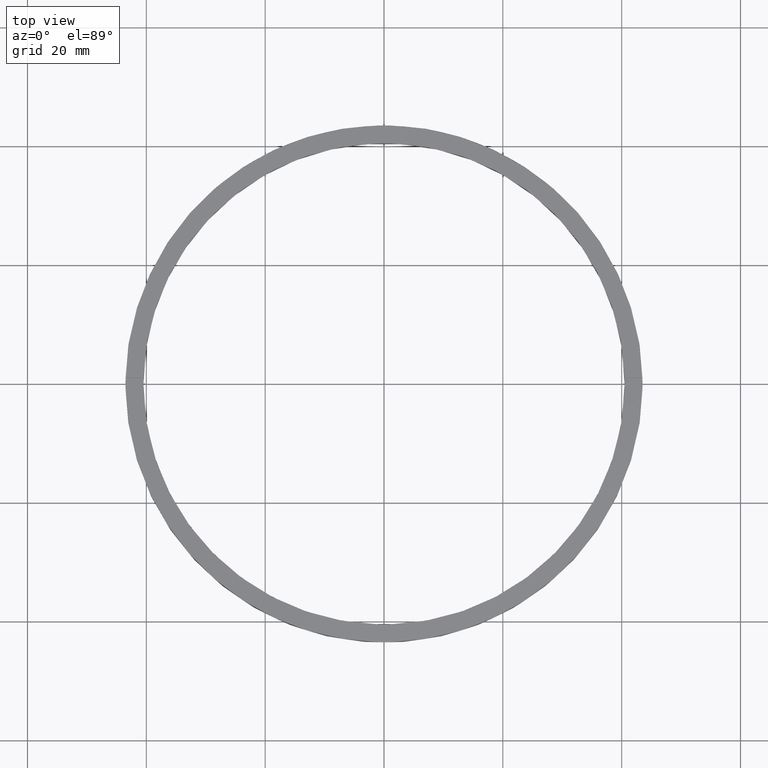
[diagram: clean part render]
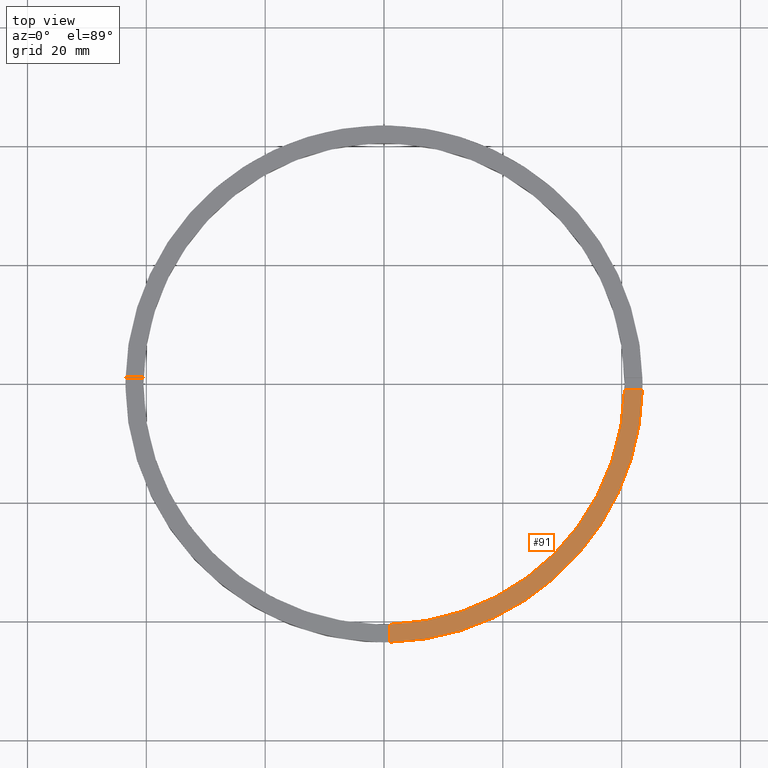
[diagram: same view with one face highlighted and labeled with its STEP entity id]
A machine part, top view. The second image highlights one B-rep face of the part: STEP entity #91.
In plain terms, the highlighted planar face has unit normal (0, 0, 1).
Its self-contained STEP definition (entity closure, byte-faithful):
#30 = VERTEX_POINT ( 'NONE', #120 ) ;
#44 = LINE ( 'NONE', #709, #389 ) ;
#50 = CIRCLE ( 'NONE', #464, 40.50000000000000000 ) ;
#91 = ADVANCED_FACE ( 'NONE', ( #744 ), #150, .T. ) ;
#120 = CARTESIAN_POINT ( 'NONE',  ( 43.48850422812905947, -1.000000000000156319, 4.000000000000000000 ) ) ;
#141 = CARTESIAN_POINT ( 'NONE',  ( 33.49999999999998579, -1.000000000000156986, 4.000000000000000000 ) ) ;
#144 = AXIS2_PLACEMENT_3D ( 'NONE', #637, #646, #385 ) ;
#150 = PLANE ( 'NONE',  #144 ) ;
#159 = EDGE_CURVE ( 'NONE', #565, #163, #50, .T. ) ;
#160 = ORIENTED_EDGE ( 'NONE', *, *, #761, .F. ) ;
#161 = DIRECTION ( 'NONE',  ( 1.000000000000000000, 0.000000000000000000, 0.000000000000000000 ) ) ;
#163 = VERTEX_POINT ( 'NONE', #245 ) ;
#226 = CARTESIAN_POINT ( 'NONE',  ( 0.9999999999998416822, -43.48850422812906658, 4.000000000000000000 ) ) ;
#234 = EDGE_CURVE ( 'NONE', #338, #30, #567, .T. ) ;
#245 = CARTESIAN_POINT ( 'NONE',  ( 40.48765243873741326, -1.000000000000156541, 4.000000000000000000 ) ) ;
#311 = DIRECTION ( 'NONE',  ( 0.000000000000000000, 0.000000000000000000, 1.000000000000000000 ) ) ;
#324 = EDGE_LOOP ( 'NONE', ( #160, #704, #514, #473 ) ) ;
#338 = VERTEX_POINT ( 'NONE', #226 ) ;
#365 = CARTESIAN_POINT ( 'NONE',  ( 0.9999999999998412381, -40.48765243873742037, 4.000000000000000000 ) ) ;
#371 = CARTESIAN_POINT ( 'NONE',  ( 0.000000000000000000, 0.000000000000000000, 4.000000000000000000 ) ) ;
#374 = CARTESIAN_POINT ( 'NONE',  ( 0.000000000000000000, 0.000000000000000000, 4.000000000000000000 ) ) ;
#385 = DIRECTION ( 'NONE',  ( 1.000000000000000000, 0.000000000000000000, -0.000000000000000000 ) ) ;
#389 = VECTOR ( 'NONE', #651, 1000.000000000000000 ) ;
#441 = VECTOR ( 'NONE', #451, 1000.000000000000000 ) ;
#451 = DIRECTION ( 'NONE',  ( 1.000000000000000000, 6.505213034913025371E-17, 0.000000000000000000 ) ) ;
#464 = AXIS2_PLACEMENT_3D ( 'NONE', #374, #311, #161 ) ;
#473 = ORIENTED_EDGE ( 'NONE', *, *, #234, .T. ) ;
#514 = ORIENTED_EDGE ( 'NONE', *, *, #620, .F. ) ;
#565 = VERTEX_POINT ( 'NONE', #365 ) ;
#567 = CIRCLE ( 'NONE', #727, 43.50000000000000000 ) ;
#620 = EDGE_CURVE ( 'NONE', #338, #565, #44, .T. ) ;
#637 = CARTESIAN_POINT ( 'NONE',  ( 0.000000000000000000, 0.000000000000000000, 4.000000000000000000 ) ) ;
#646 = DIRECTION ( 'NONE',  ( 0.000000000000000000, 0.000000000000000000, 1.000000000000000000 ) ) ;
#651 = DIRECTION ( 'NONE',  ( -1.301042606982605074E-16, 1.000000000000000000, -0.000000000000000000 ) ) ;
#655 = DIRECTION ( 'NONE',  ( 0.000000000000000000, 0.000000000000000000, 1.000000000000000000 ) ) ;
#704 = ORIENTED_EDGE ( 'NONE', *, *, #159, .F. ) ;
#709 = CARTESIAN_POINT ( 'NONE',  ( 0.9999999999998404610, -33.50000000000017764, 4.000000000000000000 ) ) ;
#711 = DIRECTION ( 'NONE',  ( 1.000000000000000000, 0.000000000000000000, 0.000000000000000000 ) ) ;
#719 = LINE ( 'NONE', #141, #441 ) ;
#727 = AXIS2_PLACEMENT_3D ( 'NONE', #371, #655, #711 ) ;
#744 = FACE_OUTER_BOUND ( 'NONE', #324, .T. ) ;
#761 = EDGE_CURVE ( 'NONE', #163, #30, #719, .T. ) ;